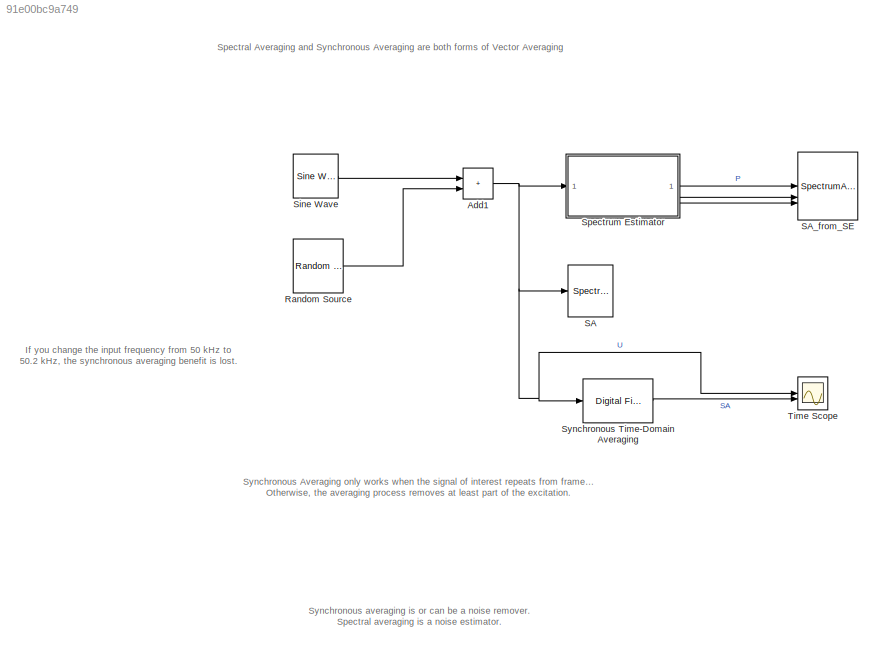
MODEL slx_91e00bc9a749
KIND model
CONFIG AbsTol = auto
CONFIG EnableMultiTasking = off
CONFIG FixedStep = auto
CONFIG InitFcn = Navg = 100;\nNfft = 1000;\nFs = 1e6;
CONFIG MaxStep = auto
CONFIG MinStep = auto
CONFIG PreLoadFcn = Navg = 100;\nNfft = 1000;\nFs = 1e6;
CONFIG RelTol = 1e-3
CONFIG SampleTimeConstraint = Unconstrained
CONFIG SolverName = VariableStepAuto
CONFIG StartTime = 0.0
CONFIG StopFcn = post_process_logged_spectrum
CONFIG StopTime = 2*Nfft/Fs*(Navg-1)
BLOCK [Sum] Add1
  IconShape = rectangular
BLOCK [Reference] Random Source  REF=dspsrcs4/Random
Source
  SourceBlock = dspsrcs4/Random\nSource
  SourceType = dsp.simulink.RandomSource
BLOCK [SpectrumAnalyzer] SA
  AllowFFTLengthLessThanSamplesPerUpdate = on
  AxesScaling = Manual
  CenterFrequency = 25000000
  FFTLength = 1000
  FFTLengthSource = Property
  FrequencyResolutionMethod = Window length
  GraphicalSettings = {"GraphicalSettings":{"Style":{"BackgroundColor":[0.12941176470588237,0.12941176470588237,0.12941176470588237],"AxesColor":[0,0,0],"LabelsColor":[0.6862745098039216,0.6862745098039216,0.6862745098039216],"PreserveColors":false,"Visible":[true],"LineStyle":["-"],"LineColor":[[1,0.9098039215686274,0.39215686274509803]],"LineWidth":[0.5],"Marker":["none"],"FontSize":"small"},"Cursors":{"Enabled":fals...<+892ch>
  Method = Welch
  PlotAsTwoSidedSpectrum = off
  SampleRate = 100000000
  ScopeFrameLocation = window
  ScopeSpecificationString = spbscopes.SpectrumAnalyzerBlockCfg('CurrentConfiguration', extmgr.ConfigurationSet(extmgr.Configuration('Core','General UI',true),extmgr.Configuration('Core','Source UI',true),extmgr.Configuration('Sources','WiredSimulink',true),extmgr.Configuration('Visuals','Spectrum',true,'AxesProperties',struct('Color',{[0 0 0],[0 0 0]},'XColor',{[0.686274509803922 0.686274509803922 0.686274509803922],[0.68627...<+3651ch>
  SelectedToolstripTab = spectrumAnalyzerToolstrip.estimationTab
  Span = 50000000
  SpectrumUnits = dBW
  StartFrequency = 0
  StopFrequency = 50000000
  VBW = 1
  VBWSource = Property
  Visible = on
  WasSavedAsWebScope = on
  Window = Rectangular
  WindowLength = 1000
  WindowPosition = [26.000000,51.000000,989.000000,526.000000,]
  YLimits = [-35.31827535249315,1.256633097506851]
BLOCK [SpectrumAnalyzer] SA_from_SE
  FrequencyVectorSource = Input port
  GraphicalSettings = {"GraphicalSettings":{"Style":{"BackgroundColor":[0.12941176470588237,0.12941176470588237,0.12941176470588237],"AxesColor":[0.07058823529411765,0.07058823529411765,0.07058823529411765],"LabelsColor":[0.8509803921568627,0.8509803921568627,0.8509803921568627],"PreserveColors":false,"Visible":[true],"LineStyle":["-"],"LineColor":[[1,0.9098039215686274,0.39215686274509803]],"LineWidth":[1.5],"Marker":...<+946ch>
  InputDomain = Frequency
  InputUnits = dBW
  NumInputPorts = 3
  PlotAsTwoSidedSpectrum = off
  RBWSource = Input port
  ScopeFrameLocation = window
  SelectedToolstripTab = spectrumAnalyzerToolstrip.spectrumTab
  Span = 10024875.621890547
  SpectrumUnits = Auto
  StartFrequency = -5012437.810945273
  StopFrequency = 5012437.810945273
  Visible = on
  WasSavedAsWebScope = on
  WindowPosition = [466.000000,282.000000,988.000000,516.000000,]
  YLimits = [-34.67607203,0.54062467]
BLOCK [Reference] Sine Wave  REF=dspsrcs4/Sine Wave
  SourceBlock = dspsrcs4/Sine Wave
  SourceType = Sine Wave
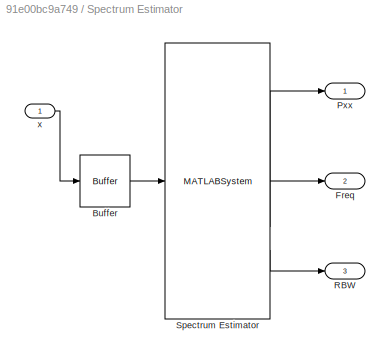
BLOCK [SubSystem] Spectrum Estimator
  InitFcn = dspblkspectrumestimator(gcb,'setup')
  LibrarySourceBlock = dspspect3/Spectrum Estimator
  TreatAsAtomicUnit = on
BLOCK [Buffer] Spectrum Estimator/Buffer
  InheritSize = on
  OutputFrames = off
  OverlapPercent = Overlap
BLOCK [Outport] Spectrum Estimator/Freq
  Port = 2
BLOCK [Outport] Spectrum Estimator/Pxx
  VectorParamsAs1DForOutWhenUnconnected = off
BLOCK [Outport] Spectrum Estimator/RBW
  Port = 3
BLOCK [MATLABSystem] Spectrum Estimator/Spectrum Estimator
  AdjustFFTLength = off
  AveragingMethod = Running
  FFTLength = 1000
  FFTLengthSource = Property
  ForgettingFactor = ForgettingFactor
  ForgettingFactorPort = off
  FrequencyRange = onesided
  InheritSampleRate = on
  MaskDisplay = disp(['Spectrum' char(10) 'Estimator']);\nport_label('output',1,'P');\nport_label('output',2,'F');\nport_label('output',3,'RBW');
  MaskType = dsp.simulink.SpectrumEstimator
  Method = Welch
  NumTapsPerBand = NumTapsPerBand
  OutputFrequencyVector = on
  OutputMaxHoldSpectrum = off
  OutputMinHoldSpectrum = off
  OutputRBW = on
  PowerUnits = dBW
  ReferenceLoad = ReferenceLoad
  SampleRate = 44100
  SidelobeAttenuation = 60
  SimulateUsing = Code generation
  SpectralAverages = 100
  SpectrumType = Power
  System = dsp.simulink.SpectrumEstimator
  Window = Rectangular
BLOCK [Inport] Spectrum Estimator/x
BLOCK [Reference] Synchronous Time-Domain Averaging   REF=dspobslib/Digital Filter
  SourceBlock = dspobslib/Digital Filter
  SourceType = Digital Filter
  UserDataPersistent = on
BLOCK [Scope] Time Scope
  DefaultConfigurationName = spbscopes.TimeScopeBlockCfg
  Floating = off
  NumInputPorts = 2
  ScopeSpecificationString = spbscopes.TimeScopeBlockCfg('CurrentConfiguration', extmgr.ConfigurationSet(extmgr.Configuration('Core','General UI',true),extmgr.Configuration('Core','Source UI',true),extmgr.Configuration('Sources','WiredSimulink',true),extmgr.Configuration('Visuals','Time Domain',true,'DisplayLayoutDimensions',[2 1],'DisplayPropertyDefaults',struct('YLabelReal','Amplitude','LegendVisibility','On','XGrid',true,'...<+2729ch>
  UserDataPersistent = on
ANNOTATION (root): Synchronous averaging is or can be a noise remover . Spectral averaging is a noise estimator .
ANNOTATION (root): Spectral Averaging and Synchronous Averaging are both forms of Vector Averaging
ANNOTATION (root): Synchronous Averaging only works when the signal of interest repeats from frame to frame, i.e. the excitation is synchronous with the analysis. Otherwise, the averaging process removes at least part of the excitation.
ANNOTATION (root): If you change the input frequency from 50 kHz to 50.2 kHz, the synchronous averaging benefit is lost.
NET Add1:1 -> SA:1, Spectrum Estimator:1, Synchronous Time-Domain Averaging :1, Time Scope:1
LINE Random Source:1 -> Add1:2
LINE Sine Wave:1 -> Add1:1
LINE Spectrum Estimator:1 -> SA_from_SE:1
LINE Spectrum Estimator:2 -> SA_from_SE:2
LINE Spectrum Estimator:3 -> SA_from_SE:3
LINE Synchronous Time-Domain Averaging :1 -> Time Scope:2
note: NET lines group one-source signal fan-out (src -> all destinations, sorted); 1:1 wires keep LINE
